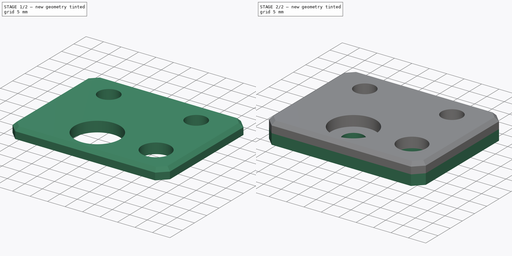
[diagram: build sequence overview — one tinted view per stage of 2, left to right]
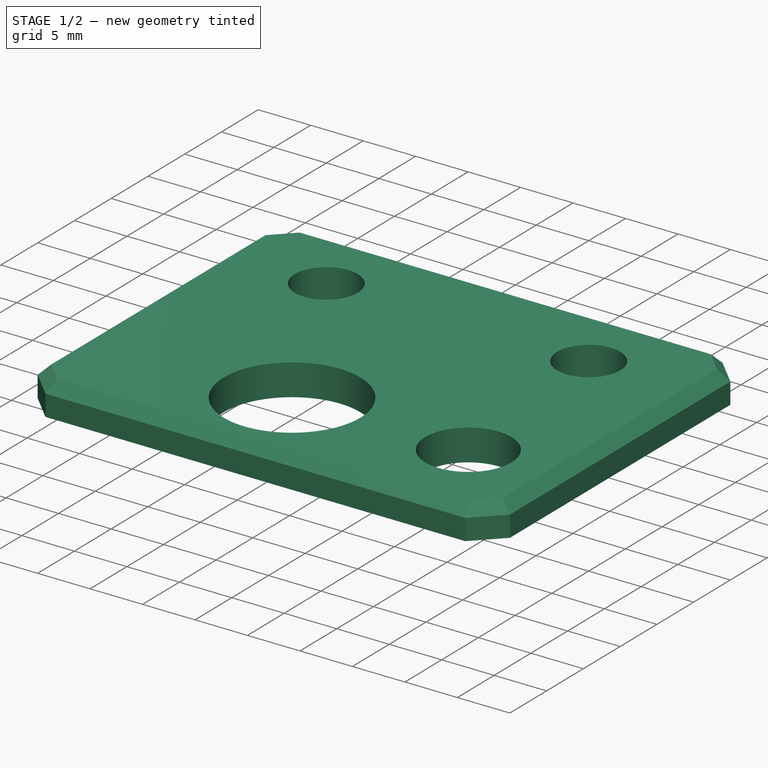
[diagram: stage 1 of 2 — iso view after this stage's code; geometry added in this stage tinted green]
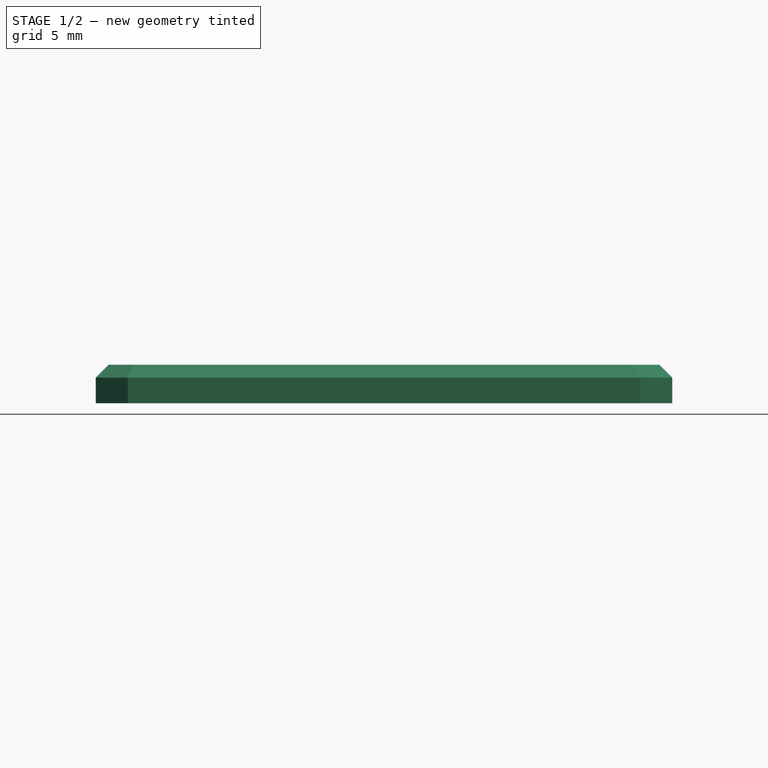
[diagram: stage 1 of 2 — front view after this stage's code; geometry added in this stage tinted green]
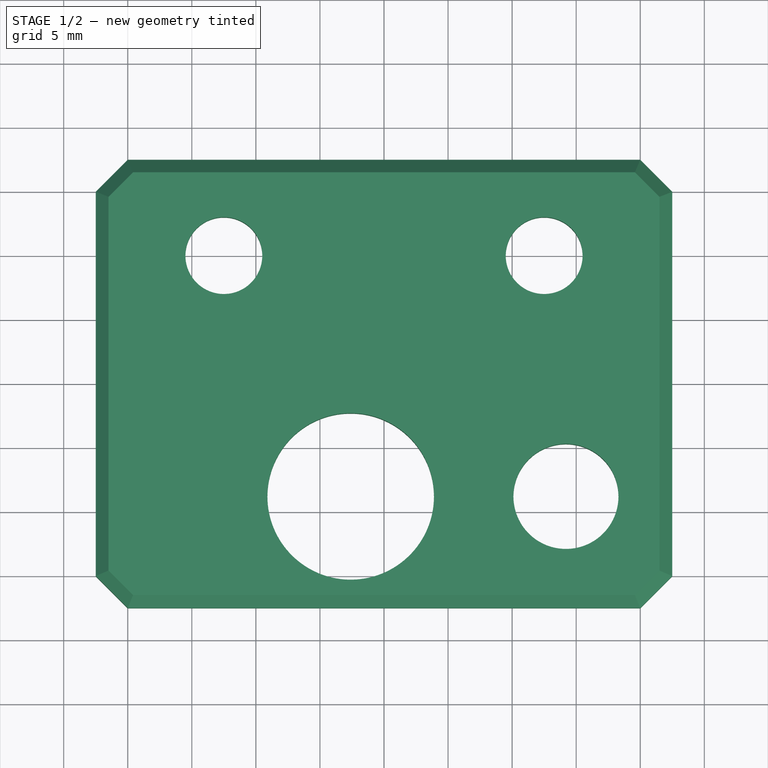
[diagram: stage 1 of 2 — top view after this stage's code; geometry added in this stage tinted green]
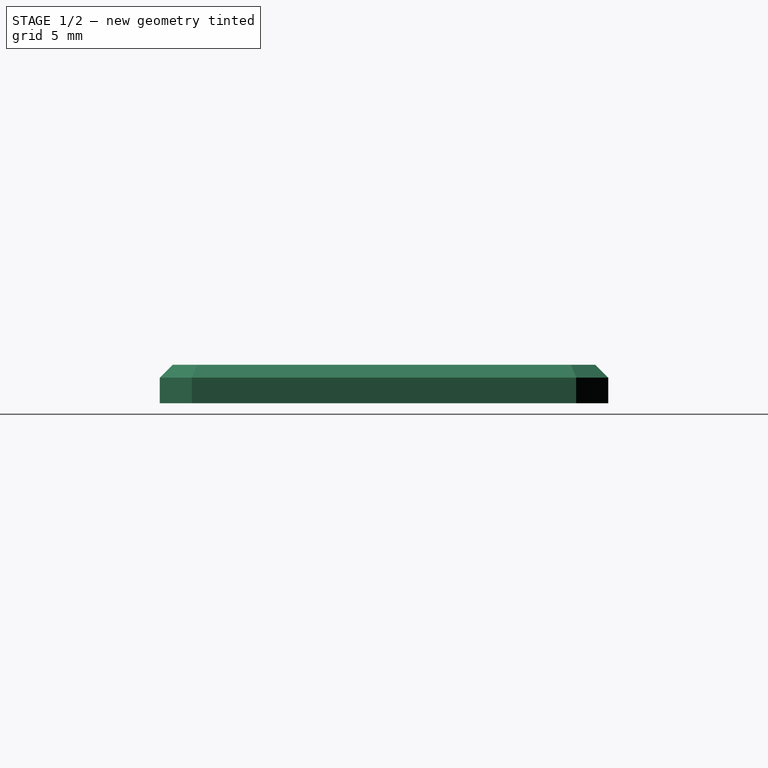
[diagram: stage 1 of 2 — right view after this stage's code; geometry added in this stage tinted green]
FCSTD DOCUMENT  (FreeCAD 0.14R3702 (Git))
Label: prusa_z_thrust_bearing_positioning_plate
License: CC-BY 3.0
LicenseURL: http://creativecommons.org/licenses/by/3.0/
objects: Sketcher::SketchObject×2, PartDesign::Pad×2, PartDesign::Chamfer×1
note: 7 computed .brp shape members not serialized (recipe doc carries the construction recipe); baked Part::Feature solids carry a one-line shape summary decoded from their .brp

FEATURE [Sketcher::SketchObject] Sketch001  label="thrust_bearing_positioner_sketch"
  Placement = pos=(0,0,3) rot=(0,0,1;0rad)
  sketch-geometry (18):
    g0: LineSegment StartX=-20 StartY=17.5 StartZ=0 EndX=20 EndY=17.5 EndZ=0
    g1: LineSegment StartX=20 StartY=-17.5 StartZ=0 EndX=-20 EndY=-17.5 EndZ=0
    g2: LineSegment StartX=-22.5 StartY=-15 StartZ=0 EndX=-22.5 EndY=15 EndZ=0
    g3: Circle CenterX=14.2 CenterY=-8.8 CenterZ=0 NormalX=0 NormalY=0 NormalZ=1 Radius=4.1
    g4: Circle CenterX=-2.6 CenterY=-8.8 CenterZ=0 NormalX=0 NormalY=0 NormalZ=1 Radius=6.5
    g5: LineSegment [constr] StartX=22.5 StartY=-8.8 StartZ=0 EndX=14.2 EndY=-8.8 EndZ=0
    g6: LineSegment [constr] StartX=14.2 StartY=-8.8 StartZ=0 EndX=-2.6 EndY=-8.8 EndZ=0
    g7: LineSegment [constr] StartX=22.5 StartY=0 StartZ=0 EndX=-22.5 EndY=0 EndZ=0
    g8: LineSegment [constr] StartX=0 StartY=17.5 StartZ=0 EndX=0 EndY=-17.5 EndZ=0
    g9: LineSegment [constr] StartX=14.2 StartY=-8.8 StartZ=0 EndX=14.2 EndY=-17.5 EndZ=0
    g10: LineSegment StartX=-22.5 StartY=15 StartZ=0 EndX=-20 EndY=17.5 EndZ=0
    g11: LineSegment StartX=20 StartY=17.5 StartZ=0 EndX=22.5 EndY=15 EndZ=0
    g12: LineSegment StartX=22.5 StartY=-15 StartZ=0 EndX=20 EndY=-17.5 EndZ=0
    g13: LineSegment StartX=-20 StartY=-17.5 StartZ=0 EndX=-22.5 EndY=-15 EndZ=0
    g14: LineSegment StartX=22.5 StartY=15 StartZ=0 EndX=22.5 EndY=-15 EndZ=0
    g15: LineSegment [constr] StartX=-12.5 StartY=10 StartZ=0 EndX=12.5 EndY=10 EndZ=0
    g16: Circle CenterX=12.5 CenterY=10 CenterZ=0 NormalX=0 NormalY=0 NormalZ=1 Radius=3
    g17: Circle CenterX=-12.5 CenterY=10 CenterZ=0 NormalX=0 NormalY=0 NormalZ=1 Radius=3
  constraints (51):
    c: Horizontal(g0)
    c: Horizontal(g1)
    c: Vertical(g2)
    c: Radius(g3) = 4.1
    c: Radius(g4) = 6.5
    c: Horizontal(g5)
    c: Coincident(g3,g5)
    c: Coincident(g6,g3)
    c: Horizontal(g6)
    c: Coincident(g4,g6)
    c: DistanceX(g6) = -16.8
    c: DistanceX(g5) = -8.3
    c: PointOnObject(g7,g2)
    c: DistanceX(g7) = -45
    c: DistanceY(g8) = -35
    c: Equal(g1,g0)
    c: PointOnObject(g8,g0)
    c: PointOnObject(g8,g1)
    c: Symmetric(g1,g1,g-2)
    c: Symmetric(g0,g0,g-2)
    c: Symmetric(g12,g11,g-1)
    c: Symmetric(g2,g2,g-1)
    c: Symmetric(g8,g8,g-1)
    c: Symmetric(g7,g7,g-2)
    c: Coincident(g9,g3)
    c: PointOnObject(g9,g1)
    c: Vertical(g9)
    c: DistanceY(g9) = -8.7
    c: Tangent(g8,g-2)
    c: Tangent(g7,g-1)
    c: DistanceY(g2) = 30
    c: DistanceX(g0) = 40
    c: Coincident(g10,g2)
    c: Coincident(g10,g0)
    c: Coincident(g11,g0)
    c: Coincident(g12,g1)
    c: Coincident(g13,g1)
    c: Coincident(g13,g2)
    c: Coincident(g14,g11)
    c: Coincident(g14,g12)
    c: Equal(g14,g2)
    c: PointOnObject(g7,g14)
    c: PointOnObject(g5,g14)
    c: Horizontal(g15)
    c: Symmetric(g15,g15,g-2)
    c: DistanceX(g15) = 25
    c: DistanceY(g15,g0) = 7.5
    c: Coincident(g16,g15)
    c: Coincident(g17,g15)
    c: Equal(g17,g16)
    c: Radius(g17) = 3
FEATURE [PartDesign::Pad] Pad001  label="thrust_bearing_positioner_Pad"
  Length = 3
  Length2 = 100
  Placement = pos=(0,0,3) rot=(0,0,1;0rad)
  Sketch = -> Sketch001
  Type = 0
FEATURE [PartDesign::Chamfer] Chamfer
  Base = -> Pad001 [Edge16,Edge13,Edge10,Edge4,Edge7,Edge24,Edge22,Edge19]
  Placement = pos=(0,0,3) rot=(0,0,1;0rad)
  Size = 1
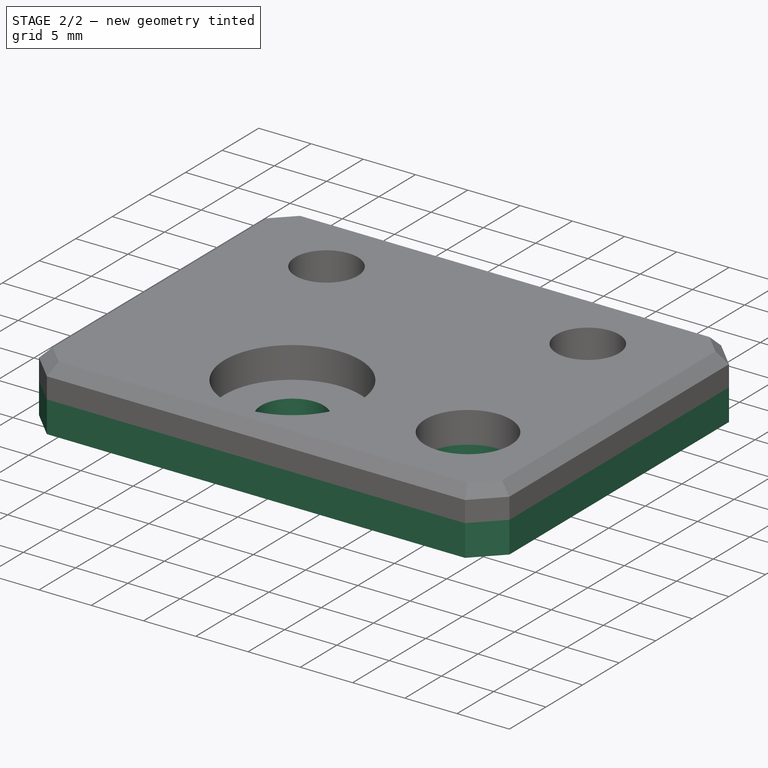
[diagram: stage 2 of 2 — iso view after this stage's code; geometry added in this stage tinted green]
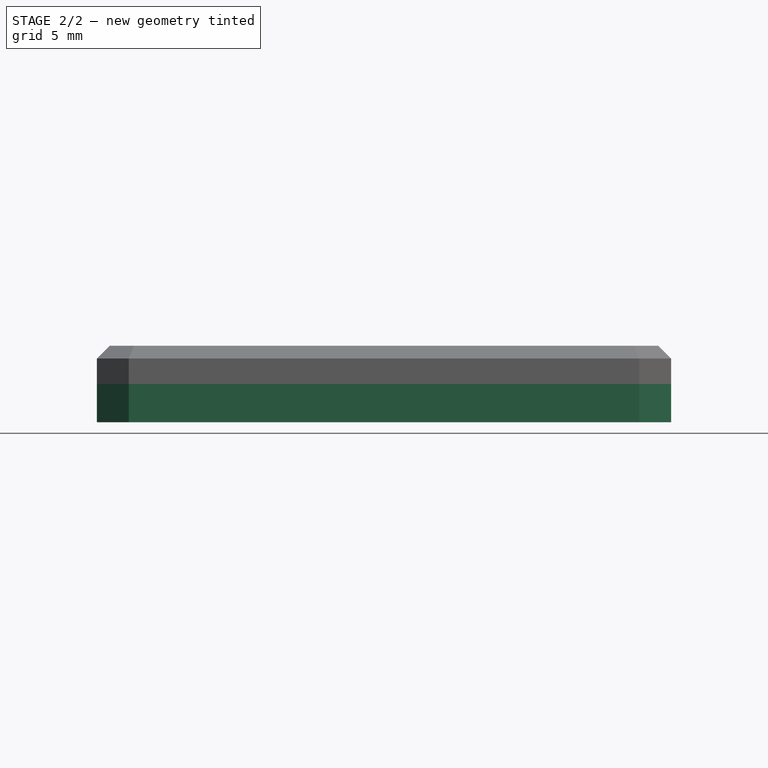
[diagram: stage 2 of 2 — front view after this stage's code; geometry added in this stage tinted green]
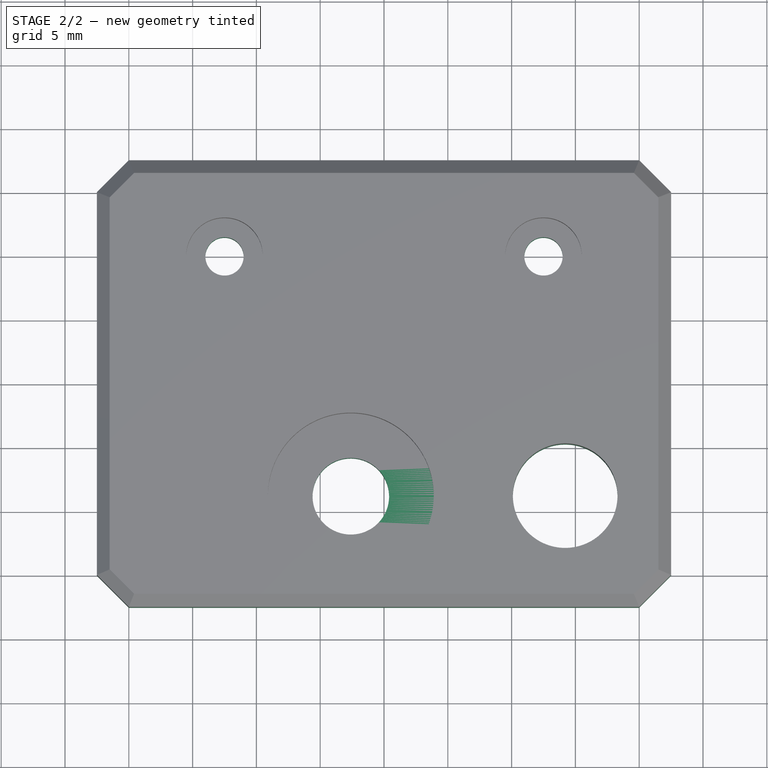
[diagram: stage 2 of 2 — top view after this stage's code; geometry added in this stage tinted green]
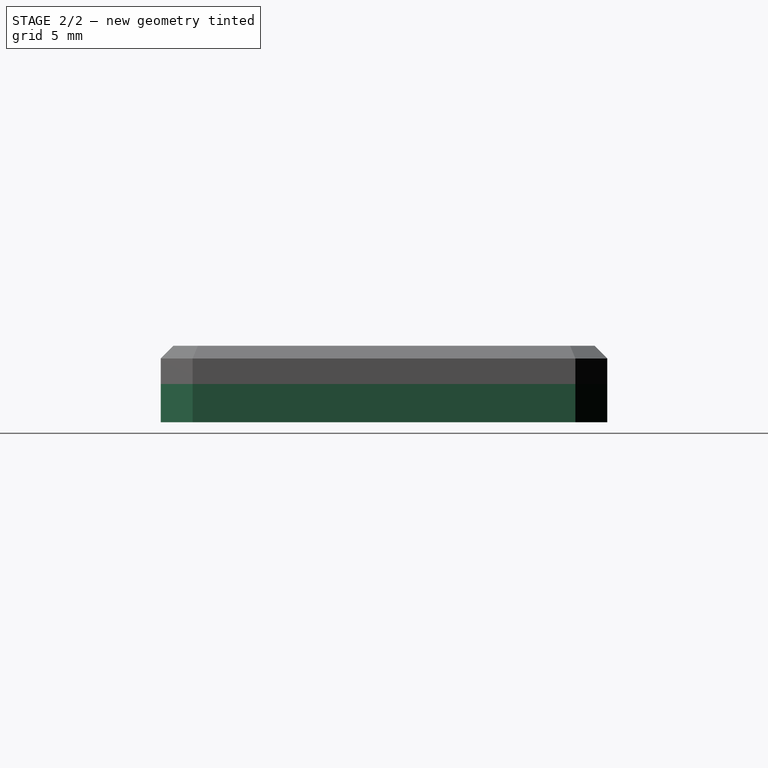
[diagram: stage 2 of 2 — right view after this stage's code; geometry added in this stage tinted green]
FEATURE [Sketcher::SketchObject] Sketch  label="base_sketch"
  sketch-geometry (18):
    g0: LineSegment StartX=-20 StartY=17.5 StartZ=0 EndX=20 EndY=17.5 EndZ=0
    g1: LineSegment StartX=20 StartY=-17.5 StartZ=0 EndX=-20 EndY=-17.5 EndZ=0
    g2: LineSegment StartX=-22.5 StartY=-15 StartZ=0 EndX=-22.5 EndY=15 EndZ=0
    g3: Circle CenterX=14.2 CenterY=-8.8 CenterZ=0 NormalX=0 NormalY=0 NormalZ=1 Radius=4.1
    g4: Circle CenterX=-2.6 CenterY=-8.8 CenterZ=0 NormalX=0 NormalY=0 NormalZ=1 Radius=3
    g5: LineSegment [constr] StartX=22.5 StartY=-8.8 StartZ=0 EndX=14.2 EndY=-8.8 EndZ=0
    g6: LineSegment [constr] StartX=14.2 StartY=-8.8 StartZ=0 EndX=-2.6 EndY=-8.8 EndZ=0
    g7: LineSegment [constr] StartX=22.5 StartY=0 StartZ=0 EndX=-22.5 EndY=0 EndZ=0
    g8: LineSegment [constr] StartX=0 StartY=17.5 StartZ=0 EndX=0 EndY=-17.5 EndZ=0
    g9: LineSegment [constr] StartX=14.2 StartY=-8.8 StartZ=0 EndX=14.2 EndY=-17.5 EndZ=0
    g10: LineSegment StartX=-22.5 StartY=15 StartZ=0 EndX=-20 EndY=17.5 EndZ=0
    g11: LineSegment StartX=20 StartY=17.5 StartZ=0 EndX=22.5 EndY=15 EndZ=0
    g12: LineSegment StartX=22.5 StartY=-15 StartZ=0 EndX=20 EndY=-17.5 EndZ=0
    g13: LineSegment StartX=-20 StartY=-17.5 StartZ=0 EndX=-22.5 EndY=-15 EndZ=0
    g14: LineSegment StartX=22.5 StartY=15 StartZ=0 EndX=22.5 EndY=-15 EndZ=0
    g15: LineSegment [constr] StartX=-12.5 StartY=10 StartZ=0 EndX=12.5 EndY=10 EndZ=0
    g16: Circle CenterX=12.5 CenterY=10 CenterZ=0 NormalX=0 NormalY=0 NormalZ=1 Radius=1.5
    g17: Circle CenterX=-12.5 CenterY=10 CenterZ=0 NormalX=0 NormalY=0 NormalZ=1 Radius=1.5
  constraints (51):
    c: Horizontal(g0)
    c: Horizontal(g1)
    c: Vertical(g2)
    c: Radius(g3) = 4.1
    c: Radius(g4) = 3
    c: Horizontal(g5)
    c: Coincident(g3,g5)
    c: Coincident(g6,g3)
    c: Horizontal(g6)
    c: Coincident(g4,g6)
    c: DistanceX(g6) = -16.8
    c: DistanceX(g5) = -8.3
    c: PointOnObject(g7,g2)
    c: DistanceX(g7) = -45
    c: DistanceY(g8) = -35
    c: Equal(g1,g0)
    c: PointOnObject(g8,g0)
    c: PointOnObject(g8,g1)
    c: Symmetric(g1,g1,g-2)
    c: Symmetric(g0,g0,g-2)
    c: Symmetric(g12,g11,g-1)
    c: Symmetric(g2,g2,g-1)
    c: Symmetric(g8,g8,g-1)
    c: Symmetric(g7,g7,g-2)
    c: Coincident(g9,g3)
    c: PointOnObject(g9,g1)
    c: Vertical(g9)
    c: DistanceY(g9) = -8.7
    c: Tangent(g8,g-2)
    c: Tangent(g7,g-1)
    c: DistanceY(g2) = 30
    c: DistanceX(g0) = 40
    c: Coincident(g10,g2)
    c: Coincident(g10,g0)
    c: Coincident(g11,g0)
    c: Coincident(g12,g1)
    c: Coincident(g13,g1)
    c: Coincident(g13,g2)
    c: Coincident(g14,g11)
    c: Coincident(g14,g12)
    c: Equal(g14,g2)
    c: PointOnObject(g7,g14)
    c: PointOnObject(g5,g14)
    c: Horizontal(g15)
    c: Symmetric(g15,g15,g-2)
    c: DistanceX(g15) = 25
    c: DistanceY(g15,g0) = 7.5
    c: Coincident(g16,g15)
    c: Coincident(g17,g15)
    c: Equal(g17,g16)
    c: Radius(g17) = 1.5
FEATURE [PartDesign::Pad] Pad  label="base_pad"
  Length = 3
  Length2 = 100
  Sketch = -> Sketch
  Type = 0
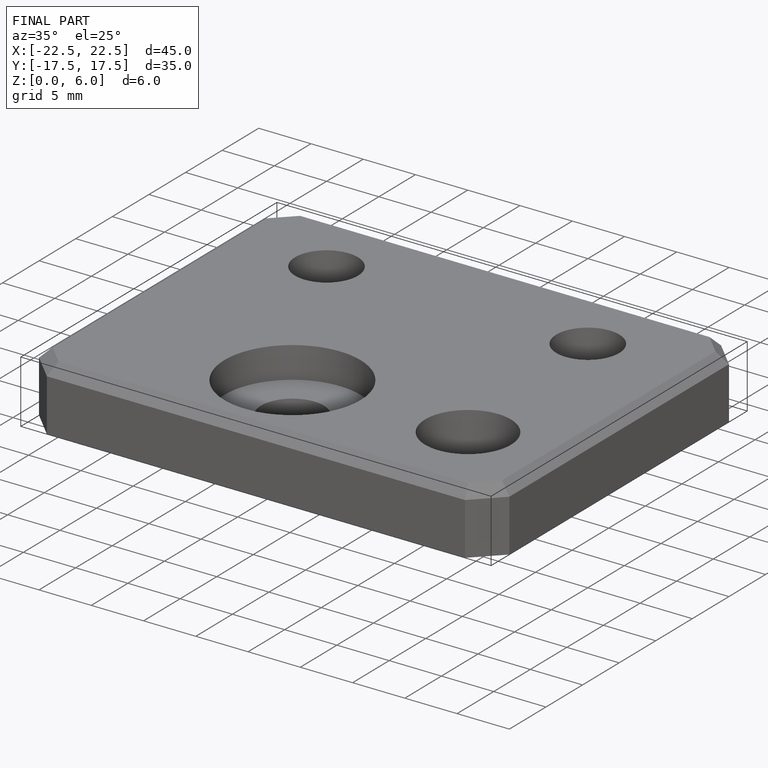
[diagram: finished part — iso view with bounding-box wireframe]
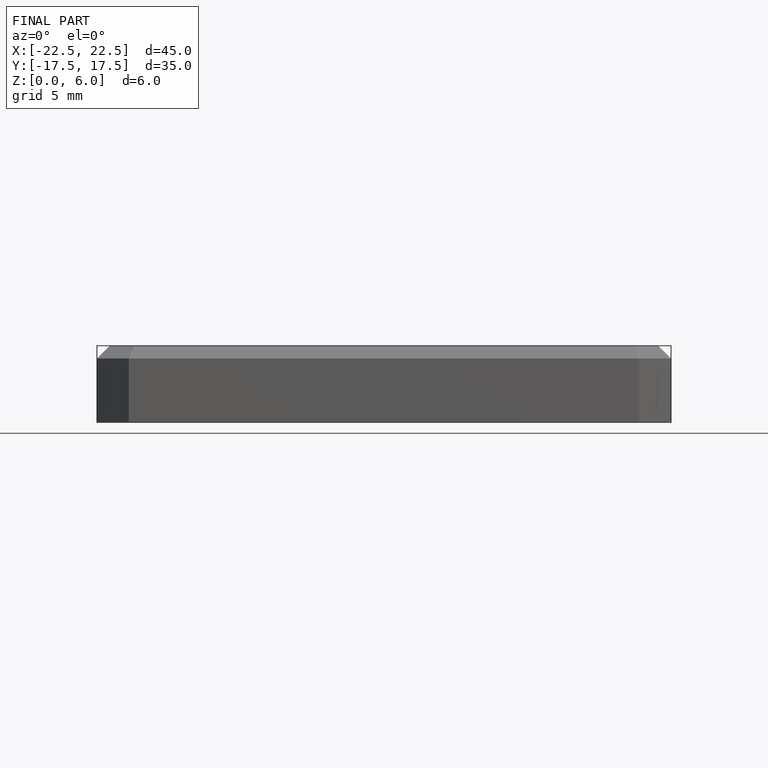
[diagram: finished part — front view with bounding-box wireframe]
